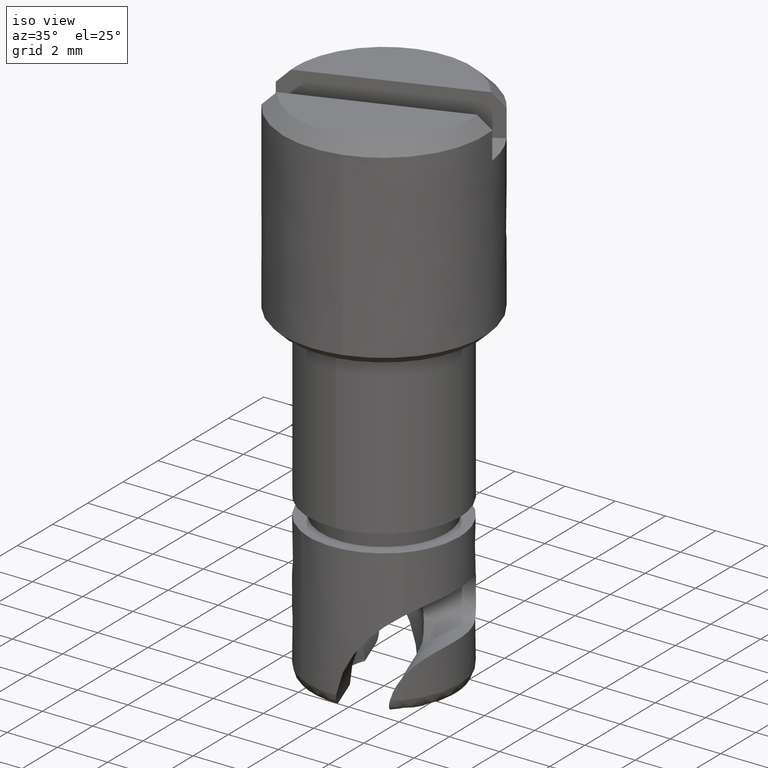
[diagram: clean part render]
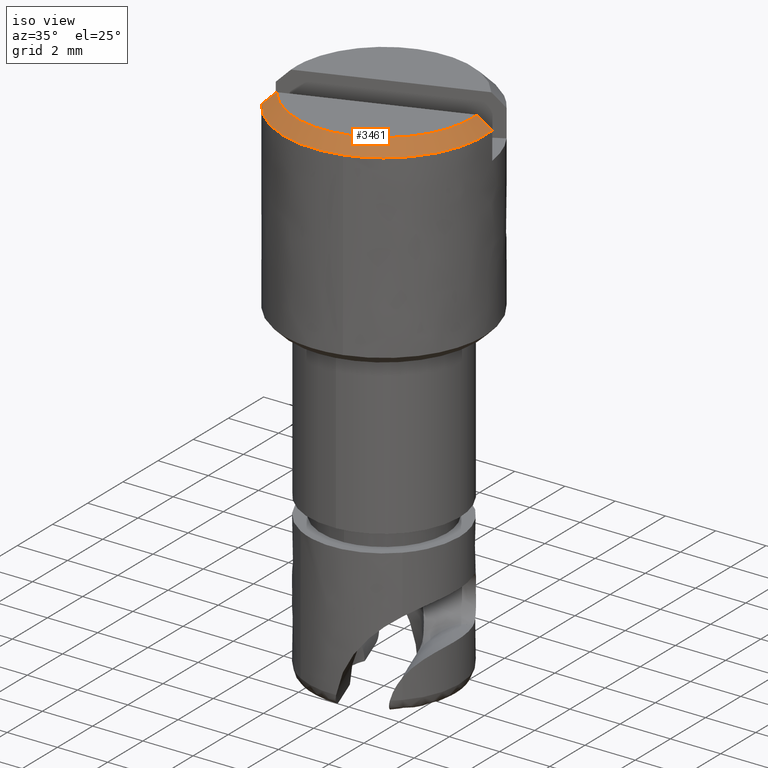
[diagram: same view with one face highlighted and labeled with its STEP entity id]
A machine part, iso view. The second image highlights one B-rep face of the part: STEP entity #3461.
In plain terms, the highlighted face is a freeform B-spline surface patch.
Its self-contained STEP definition (entity closure, byte-faithful):
#1608=CARTESIAN_POINT('',(3.970212815834940,0.487280409000824,17.702431000000001));
#1609=VERTEX_POINT('',#1608);
#1615=CARTESIAN_POINT('',(1.068955165442276,-3.854525503131337,17.702431000000001));
#1616=VERTEX_POINT('',#1615);
#1617=CARTESIAN_POINT('',(3.970212815834938,0.487280409000826,17.702431000000001));
#1618=CARTESIAN_POINT('',(4.357793264253493,-2.670607400676728,17.702431000000004));
#1619=CARTESIAN_POINT('',(1.368082952373088,-3.758773873943754,17.702431000000001));
#1620=CARTESIAN_POINT('',(1.220400396729709,-3.812525973302317,17.702431000000008));
#1621=CARTESIAN_POINT('',(1.068955165442276,-3.854525503131337,17.702431000000001));
#1629=(BOUNDED_CURVE()B_SPLINE_CURVE(2,(#1617,#1618,#1619,#1620,#1621),.UNSPECIFIED.,.F.,.U.)B_SPLINE_CURVE_WITH_KNOTS((3,2,3),(0.0,0.500000000000000,0.531131425206013),.UNSPECIFIED.)CURVE()GEOMETRIC_REPRESENTATION_ITEM()RATIONAL_B_SPLINE_CURVE((1.0,0.782623720251382,1.0,0.986465533210889,0.974616455383972))REPRESENTATION_ITEM(''));
#1630=EDGE_CURVE('',#1609,#1616,#1629,.T.);
#1688=CARTESIAN_POINT('',(-3.354576102903765,-2.178726960828960,17.702431000000001));
#1689=VERTEX_POINT('',#1688);
#1690=CARTESIAN_POINT('',(1.068955165442276,-3.854525503131337,17.702431000000001));
#1691=CARTESIAN_POINT('',(-1.757151091019626,-4.638275067310561,17.702430999999997));
#1692=CARTESIAN_POINT('',(-3.354576102903763,-2.178726960828961,17.702431000000001));
#1700=(BOUNDED_CURVE()B_SPLINE_CURVE(2,(#1690,#1691,#1692),.UNSPECIFIED.,.F.,.U.)B_SPLINE_CURVE_WITH_KNOTS((3,3),(0.531131425206013,1.0),.UNSPECIFIED.)CURVE()GEOMETRIC_REPRESENTATION_ITEM()RATIONAL_B_SPLINE_CURVE((0.974616455383972,0.796158187040492,1.0))REPRESENTATION_ITEM(''));
#1701=EDGE_CURVE('',#1616,#1689,#1700,.T.);
#1737=CARTESIAN_POINT('',(-2.870514061866085,-2.002542638908115,18.202431000000001));
#1738=VERTEX_POINT('',#1737);
#1739=CARTESIAN_POINT('',(-3.354576102903765,-2.178726960828960,17.702431000000001));
#1740=CARTESIAN_POINT('',(-3.193518719502947,-2.120106818204288,17.869419871530280));
#1741=CARTESIAN_POINT('',(-3.032221008741976,-2.061399203500837,18.036147695386269));
#1742=CARTESIAN_POINT('',(-2.870514061866085,-2.002542638908115,18.202431000000001));
#1743=B_SPLINE_CURVE_WITH_KNOTS('',3,(#1739,#1740,#1741,#1742),.UNSPECIFIED.,.F.,.U.,(4,4),(0.0,0.071148031458118),.UNSPECIFIED.);
#1744=EDGE_CURVE('',#1689,#1738,#1743,.T.);
#1746=CARTESIAN_POINT('',(3.486150774797260,0.311096087079978,18.202431000000001));
#1747=VERTEX_POINT('',#1746);
#1753=CARTESIAN_POINT('',(3.486150774797260,0.311096087079978,18.202431000000001));
#1754=CARTESIAN_POINT('',(3.647853128061354,0.369950979733339,18.036152377348088));
#1755=CARTESIAN_POINT('',(3.809151644245462,0.428658887587083,17.869423887472831));
#1756=CARTESIAN_POINT('',(3.970212815834940,0.487280409000824,17.702431000000001));
#1757=B_SPLINE_CURVE_WITH_KNOTS('',3,(#1753,#1754,#1755,#1756),.UNSPECIFIED.,.F.,.U.,(4,4),(0.928748668857985,1.0),.UNSPECIFIED.);
#1758=EDGE_CURVE('',#1747,#1609,#1757,.T.);
#3422=CARTESIAN_POINT('',(-2.973676605294676,-1.822067945258654,18.214931000000000));
#3423=CARTESIAN_POINT('',(-3.421592791690128,-2.096520696422151,17.689618500000002));
#3424=CARTESIAN_POINT('',(-1.444780064448194,-4.317278888001922,18.214931000000000));
#3425=CARTESIAN_POINT('',(-1.662403048566765,-4.967577945968179,17.689618499999998));
#3426=CARTESIAN_POINT('',(1.278013115525543,-3.244898554124713,18.214931000000000));
#3427=CARTESIAN_POINT('',(1.470516483191795,-3.733668107281833,17.689618500000002));
#3428=CARTESIAN_POINT('',(4.000806295499281,-2.172518220247502,18.214931000000000));
#3429=CARTESIAN_POINT('',(4.603436014950354,-2.499758268595486,17.689618499999998));
#3430=CARTESIAN_POINT('',(3.417525902385568,0.695126503983029,18.214931000000000));
#3431=CARTESIAN_POINT('',(3.932297806761003,0.799831370736900,17.689618500000002));
#3439=(BOUNDED_SURFACE()B_SPLINE_SURFACE(1,2,((#3422,#3424,#3426,#3428,#3430),(#3423,#3425,#3427,#3429,#3431)),.UNSPECIFIED.,.F.,.F.,.U.)B_SPLINE_SURFACE_WITH_KNOTS((2,2),(3,2,3),(0.0,1.0),(0.0,5.842183046289135,11.684366092578269),.UNSPECIFIED.)GEOMETRIC_REPRESENTATION_ITEM()RATIONAL_B_SPLINE_SURFACE(((1.0,0.766044443118978,1.0,0.766044443118978,1.0),(1.0,0.766044443118978,1.0,0.766044443118978,1.0)))REPRESENTATION_ITEM('')SURFACE());
#3440=ORIENTED_EDGE('',*,*,#1744,.F.);
#3441=ORIENTED_EDGE('',*,*,#1701,.F.);
#3442=ORIENTED_EDGE('',*,*,#1630,.F.);
#3443=ORIENTED_EDGE('',*,*,#1758,.F.);
#3444=CARTESIAN_POINT('',(-2.870514061866085,-2.002542638908115,18.202431000000001));
#3445=CARTESIAN_POINT('',(-1.331146805802508,-4.209125045221341,18.202431000000001));
#3446=CARTESIAN_POINT('',(1.197072754336648,-3.288927609547049,18.202431000000001));
#3447=CARTESIAN_POINT('',(3.725292314475804,-2.368730173872759,18.202431000000001));
#3448=CARTESIAN_POINT('',(3.486150774797259,0.311096087079978,18.202431000000001));
#3456=(BOUNDED_CURVE()B_SPLINE_CURVE(2,(#3444,#3445,#3446,#3447,#3448),.UNSPECIFIED.,.F.,.U.)B_SPLINE_CURVE_WITH_KNOTS((3,2,3),(0.0,0.500000000000000,1.0),.UNSPECIFIED.)CURVE()GEOMETRIC_REPRESENTATION_ITEM()RATIONAL_B_SPLINE_CURVE((1.0,0.792824874504339,1.0,0.792824874504339,1.0))REPRESENTATION_ITEM(''));
#3457=EDGE_CURVE('',#1738,#1747,#3456,.T.);
#3458=ORIENTED_EDGE('',*,*,#3457,.F.);
#3459=EDGE_LOOP('',(#3440,#3441,#3442,#3443,#3458));
#3460=FACE_OUTER_BOUND('',#3459,.T.);
#3461=ADVANCED_FACE('',(#3460),#3439,.T.);